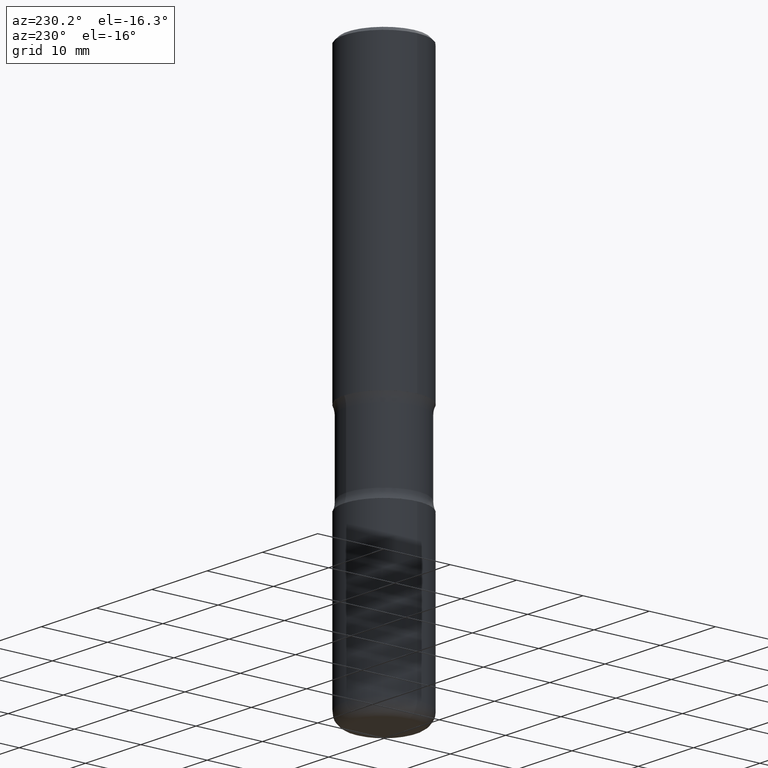
[diagram: clean part render]
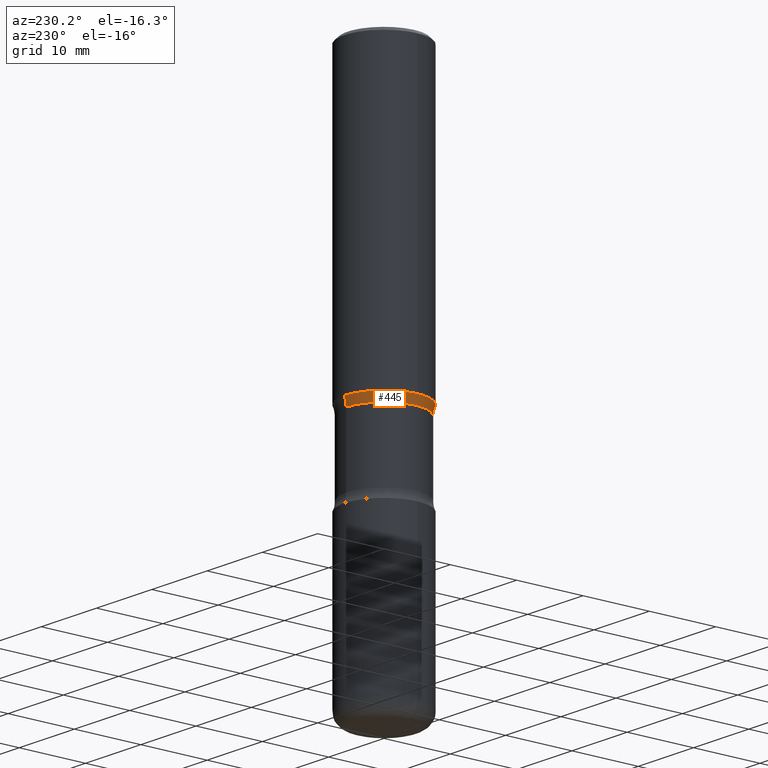
[diagram: same view with one face highlighted and labeled with its STEP entity id]
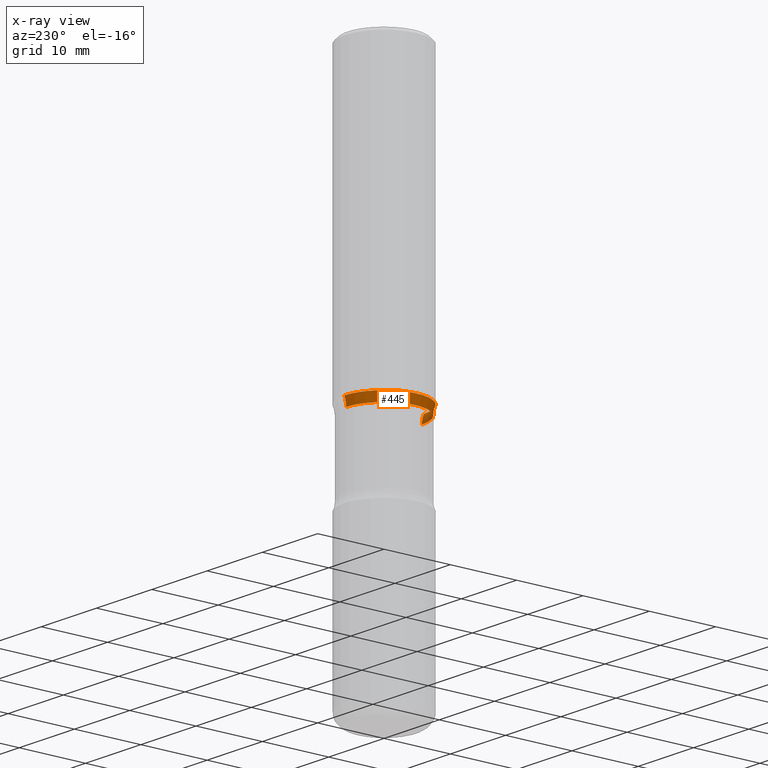
[diagram: x-ray of the same camera — body ghosted, the highlighted face saturated]
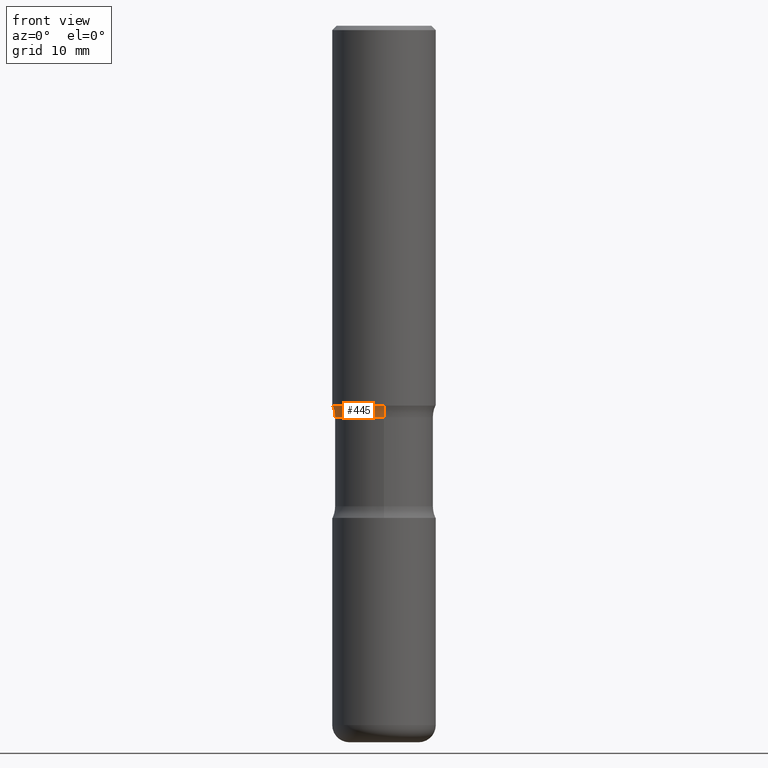
[diagram: same view with one face highlighted and labeled with its STEP entity id]
A machine part, auxiliary view. The second image highlights one B-rep face of the part: STEP entity #445.
The next image is the same camera in x-ray: the body ghosted, the highlighted face saturated — about 0% of this face is hidden behind the body in this view.
A second angle (front view) of the same face is appended — the face is thin or edge-on in the first view.
In plain terms, the highlighted toroidal blend (fillet) surface has major radius 8.8773 mm and minor (blend) radius 3.175 mm.
Its self-contained STEP definition (entity closure, byte-faithful):
#3 = DIRECTION ( 'NONE',  ( -1.000000000000000000, 6.982962677686265922E-15, -4.883557194083112340E-29 ) ) ;
#14 = CIRCLE ( 'NONE', #335, 0.1249999999999999029 ) ;
#31 = CARTESIAN_POINT ( 'NONE',  ( 4.467622709432113906E-29, -6.086281597024630126E-15, -1.785102556756280157 ) ) ;
#33 = TOROIDAL_SURFACE ( 'NONE', #221, 0.3494999999999997553, 0.1249999999999999029 ) ;
#34 = DIRECTION ( 'NONE',  ( 6.982962677686265922E-15, 1.000000000000000000, -3.810373458975038347E-15 ) ) ;
#35 = VERTEX_POINT ( 'NONE', #431 ) ;
#44 = ORIENTED_EDGE ( 'NONE', *, *, #235, .T. ) ;
#72 = CIRCLE ( 'NONE', #338, 0.2244999999999999218 ) ;
#74 = ORIENTED_EDGE ( 'NONE', *, *, #292, .F. ) ;
#76 = VERTEX_POINT ( 'NONE', #229 ) ;
#116 = CARTESIAN_POINT ( 'NONE',  ( 4.460794581293164066E-29, -6.096059865152526970E-15, -1.785102556756280379 ) ) ;
#171 = AXIS2_PLACEMENT_3D ( 'NONE', #505, #3, #420 ) ;
#172 = FACE_OUTER_BOUND ( 'NONE', #417, .T. ) ;
#221 = AXIS2_PLACEMENT_3D ( 'NONE', #116, #353, #34 ) ;
#229 = CARTESIAN_POINT ( 'NONE',  ( 1.567675121140610785E-15, 0.2244999999999938434, -1.785102556756280823 ) ) ;
#235 = EDGE_CURVE ( 'NONE', #35, #427, #370, .T. ) ;
#241 = CARTESIAN_POINT ( 'NONE',  ( 4.350253839501223252E-29, -5.885084136194481957E-15, -1.732300000000001061 ) ) ;
#248 = ORIENTED_EDGE ( 'NONE', *, *, #540, .T. ) ;
#249 = AXIS2_PLACEMENT_3D ( 'NONE', #241, #414, #281 ) ;
#281 = DIRECTION ( 'NONE',  ( 6.982962677686265922E-15, 1.000000000000000000, -3.469747663417772663E-15 ) ) ;
#292 = EDGE_CURVE ( 'NONE', #347, #76, #72, .T. ) ;
#335 = AXIS2_PLACEMENT_3D ( 'NONE', #484, #363, #486 ) ;
#338 = AXIS2_PLACEMENT_3D ( 'NONE', #31, #497, #504 ) ;
#347 = VERTEX_POINT ( 'NONE', #451 ) ;
#350 = ORIENTED_EDGE ( 'NONE', *, *, #367, .F. ) ;
#352 = CIRCLE ( 'NONE', #171, 0.1249999999999999029 ) ;
#353 = DIRECTION ( 'NONE',  ( 2.222787628876211005E-29, -3.810373458975038347E-15, -1.000000000000000000 ) ) ;
#363 = DIRECTION ( 'NONE',  ( 1.000000000000000000, -6.860497997771530774E-15, 4.836893577482214338E-29 ) ) ;
#367 = EDGE_CURVE ( 'NONE', #76, #427, #352, .T. ) ;
#370 = CIRCLE ( 'NONE', #249, 0.2362000000000002986 ) ;
#414 = DIRECTION ( 'NONE',  ( 2.222787628876211005E-29, -3.810373458975038347E-15, -1.000000000000000000 ) ) ;
#417 = EDGE_LOOP ( 'NONE', ( #74, #248, #44, #350 ) ) ;
#420 = DIRECTION ( 'NONE',  ( -6.982962677686264344E-15, -1.000000000000000000, 0.000000000000000000 ) ) ;
#427 = VERTEX_POINT ( 'NONE', #439 ) ;
#431 = CARTESIAN_POINT ( 'NONE',  ( -1.620449627073594255E-15, -0.2362000000000062105, -1.732300000000000173 ) ) ;
#439 = CARTESIAN_POINT ( 'NONE',  ( 1.649375784469541885E-15, 0.2361999999999944699, -1.732300000000001949 ) ) ;
#445 = ADVANCED_FACE ( 'NONE', ( #172 ), #33, .F. ) ;
#451 = CARTESIAN_POINT ( 'NONE',  ( -1.580315713786628776E-15, -0.2245000000000060003, -1.785102556756279268 ) ) ;
#484 = CARTESIAN_POINT ( 'NONE',  ( -2.397744050221103757E-15, -0.3495000000000058615, -1.785102556756279046 ) ) ;
#486 = DIRECTION ( 'NONE',  ( 6.860497997771531562E-15, 1.000000000000000000, 0.000000000000000000 ) ) ;
#497 = DIRECTION ( 'NONE',  ( 2.222787628876211005E-29, -3.810373458975038347E-15, -1.000000000000000000 ) ) ;
#504 = DIRECTION ( 'NONE',  ( 6.982962677686265922E-15, 1.000000000000000000, -3.650576383515720449E-15 ) ) ;
#505 = CARTESIAN_POINT ( 'NONE',  ( 2.440545455851393334E-15, 0.3494999999999937046, -1.785102556756281711 ) ) ;
#540 = EDGE_CURVE ( 'NONE', #347, #35, #14, .T. ) ;